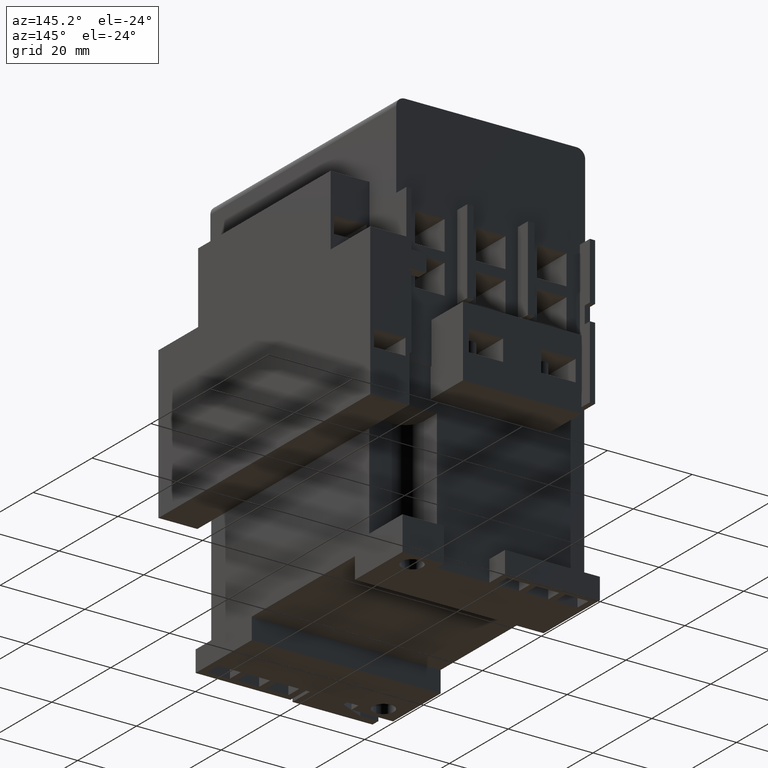
[diagram: clean part render]
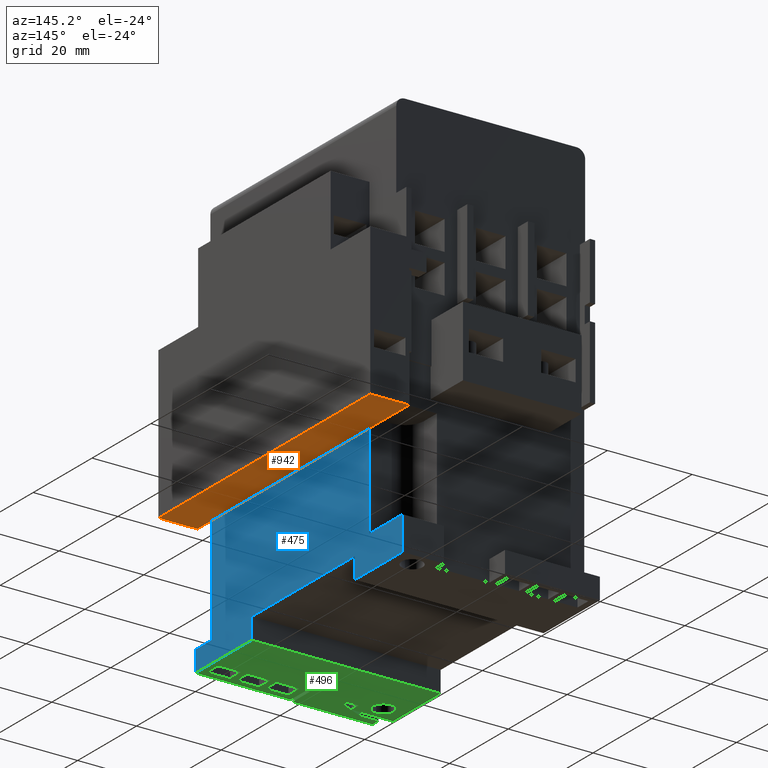
[diagram: same view with three faces highlighted in distinct colors, each labeled with its STEP entity id]
A machine part, auxiliary view with three faces highlighted in distinct colors.
Their STEP definitions:

[orange] entity #942 — the highlighted planar face has unit normal (0, -0, -1).
#942=ADVANCED_FACE('',(#1824),#1399,.T.);
#1399=PLANE('',#9953);
#1824=FACE_OUTER_BOUND('',#2414,.T.);
#2414=EDGE_LOOP('',(#4855,#4856,#4857,#4858,#4859,#4860));
#4855=ORIENTED_EDGE('',*,*,#7063,.F.);
#4856=ORIENTED_EDGE('',*,*,#6950,.F.);
#4857=ORIENTED_EDGE('',*,*,#7068,.T.);
#4858=ORIENTED_EDGE('',*,*,#7076,.T.);
#4859=ORIENTED_EDGE('',*,*,#7079,.F.);
#4860=ORIENTED_EDGE('',*,*,#5852,.F.);
#4991=VERTEX_POINT('',#12416);
#4993=VERTEX_POINT('',#12419);
#5734=VERTEX_POINT('',#14668);
#5736=VERTEX_POINT('',#14673);
#5819=VERTEX_POINT('',#14923);
#5821=VERTEX_POINT('',#14936);
#5852=EDGE_CURVE('',#4991,#4993,#7119,.T.);
#6950=EDGE_CURVE('',#5736,#5734,#8087,.T.);
#7063=EDGE_CURVE('',#5734,#4991,#8174,.T.);
#7068=EDGE_CURVE('',#5736,#5819,#8179,.T.);
#7076=EDGE_CURVE('',#5819,#5821,#8187,.T.);
#7079=EDGE_CURVE('',#4993,#5821,#8190,.T.);
#7119=LINE('',#12418,#8230);
#8087=LINE('',#14674,#9198);
#8174=LINE('',#14914,#9285);
#8179=LINE('',#14924,#9290);
#8187=LINE('',#14938,#9298);
#8190=LINE('',#14942,#9301);
#8230=VECTOR('',#9995,1.);
#9198=VECTOR('',#12051,1.);
#9285=VECTOR('',#12286,1.);
#9290=VECTOR('',#12293,1.);
#9298=VECTOR('',#12307,1.);
#9301=VECTOR('',#12312,1.);
#9953=AXIS2_PLACEMENT_3D('',#14943,#12313,#12314);
#9995=DIRECTION('',(0.,-1.,9.63735264431559E-017));
#12051=DIRECTION('',(-1.,0.,0.));
#12286=DIRECTION('',(0.,-1.,9.63735264431559E-017));
#12293=DIRECTION('',(0.,-1.,9.63735264431559E-017));
#12307=DIRECTION('',(-1.,0.,0.));
#12312=DIRECTION('',(0.,-1.,9.63735264431559E-017));
#12313=DIRECTION('',(0.,-9.63735264431559E-017,-1.));
#12314=DIRECTION('',(0.,1.,-9.71445146547012E-017));
#12416=CARTESIAN_POINT('',(22.3,22.4,25.3499999999993));
#12418=CARTESIAN_POINT('',(22.3,0.,25.35));
#12419=CARTESIAN_POINT('',(22.3,-31.3,25.3499999999993));
#14668=CARTESIAN_POINT('',(22.3,36.000000000001,25.3499999999986));
#14673=CARTESIAN_POINT('',(31.5,36.000000000001,25.3499999999986));
#14674=CARTESIAN_POINT('',(31.5,36.000000000001,25.3499999999986));
#14914=CARTESIAN_POINT('',(22.3,0.,25.35));
#14923=CARTESIAN_POINT('',(31.5,-36.,25.35));
#14924=CARTESIAN_POINT('',(31.5,0.,25.35));
#14936=CARTESIAN_POINT('',(22.3,-36.,25.35));
#14938=CARTESIAN_POINT('',(31.5,-36.,25.35));
#14942=CARTESIAN_POINT('',(22.3,0.,25.35));
#14943=CARTESIAN_POINT('',(31.5,0.,25.35));

[blue] entity #475 — the highlighted planar face has unit normal (1, 0, 0).
#475=ADVANCED_FACE('',(#1425),#968,.T.);
#968=PLANE('',#9330);
#1425=FACE_OUTER_BOUND('',#1845,.T.);
#1845=EDGE_LOOP('',(#2457,#2458,#2459,#2460,#2461,#2462,#2463,#2464,#2465,
#2466,#2467,#2468));
#2457=ORIENTED_EDGE('',*,*,#5851,.F.);
#2458=ORIENTED_EDGE('',*,*,#5852,.T.);
#2459=ORIENTED_EDGE('',*,*,#5853,.F.);
#2460=ORIENTED_EDGE('',*,*,#5854,.F.);
#2461=ORIENTED_EDGE('',*,*,#5855,.F.);
#2462=ORIENTED_EDGE('',*,*,#5856,.F.);
#2463=ORIENTED_EDGE('',*,*,#5857,.F.);
#2464=ORIENTED_EDGE('',*,*,#5858,.T.);
#2465=ORIENTED_EDGE('',*,*,#5859,.T.);
#2466=ORIENTED_EDGE('',*,*,#5860,.T.);
#2467=ORIENTED_EDGE('',*,*,#5861,.F.);
#2468=ORIENTED_EDGE('',*,*,#5862,.T.);
#4991=VERTEX_POINT('',#12416);
#4992=VERTEX_POINT('',#12417);
#4993=VERTEX_POINT('',#12419);
#4994=VERTEX_POINT('',#12421);
#4995=VERTEX_POINT('',#12423);
#4996=VERTEX_POINT('',#12425);
#4997=VERTEX_POINT('',#12427);
#4998=VERTEX_POINT('',#12429);
#4999=VERTEX_POINT('',#12431);
#5000=VERTEX_POINT('',#12433);
#5001=VERTEX_POINT('',#12435);
#5002=VERTEX_POINT('',#12437);
#5851=EDGE_CURVE('',#4991,#4992,#7118,.T.);
#5852=EDGE_CURVE('',#4991,#4993,#7119,.T.);
#5853=EDGE_CURVE('',#4994,#4993,#7120,.T.);
#5854=EDGE_CURVE('',#4995,#4994,#7121,.T.);
#5855=EDGE_CURVE('',#4996,#4995,#7122,.T.);
#5856=EDGE_CURVE('',#4997,#4996,#7123,.T.);
#5857=EDGE_CURVE('',#4998,#4997,#7124,.T.);
#5858=EDGE_CURVE('',#4998,#4999,#7125,.T.);
#5859=EDGE_CURVE('',#4999,#5000,#7126,.T.);
#5860=EDGE_CURVE('',#5000,#5001,#7127,.T.);
#5861=EDGE_CURVE('',#5002,#5001,#7128,.T.);
#5862=EDGE_CURVE('',#5002,#4992,#7129,.T.);
#7118=LINE('',#12415,#8229);
#7119=LINE('',#12418,#8230);
#7120=LINE('',#12420,#8231);
#7121=LINE('',#12422,#8232);
#7122=LINE('',#12424,#8233);
#7123=LINE('',#12426,#8234);
#7124=LINE('',#12428,#8235);
#7125=LINE('',#12430,#8236);
#7126=LINE('',#12432,#8237);
#7127=LINE('',#12434,#8238);
#7128=LINE('',#12436,#8239);
#7129=LINE('',#12438,#8240);
#8229=VECTOR('',#9994,1.);
#8230=VECTOR('',#9995,1.);
#8231=VECTOR('',#9996,1.);
#8232=VECTOR('',#9997,1.);
#8233=VECTOR('',#9998,1.);
#8234=VECTOR('',#9999,1.);
#8235=VECTOR('',#10000,1.);
#8236=VECTOR('',#10001,1.);
#8237=VECTOR('',#10002,1.);
#8238=VECTOR('',#10003,1.);
#8239=VECTOR('',#10004,1.);
#8240=VECTOR('',#10005,1.);
#9330=AXIS2_PLACEMENT_3D('',#12439,#10006,#10007);
#9994=DIRECTION('',(0.,0.,-1.));
#9995=DIRECTION('',(0.,-1.,9.63735264431559E-017));
#9996=DIRECTION('',(0.,3.72058654364999E-016,1.));
#9997=DIRECTION('',(0.,1.,0.));
#9998=DIRECTION('',(0.,0.,1.));
#9999=DIRECTION('',(0.,-1.,1.81646437275058E-016));
#10000=DIRECTION('',(0.,0.,-1.));
#10001=DIRECTION('',(0.,1.,1.22464679914735E-016));
#10002=DIRECTION('',(0.,0.,-1.));
#10003=DIRECTION('',(0.,1.,1.81646437275058E-016));
#10004=DIRECTION('',(0.,0.,-1.));
#10005=DIRECTION('',(0.,-1.,0.));
#10006=DIRECTION('',(1.,0.,0.));
#10007=DIRECTION('',(0.,0.,-1.));
#12415=CARTESIAN_POINT('',(22.3,22.4,27.75));
#12416=CARTESIAN_POINT('',(22.3,22.4,25.3499999999993));
#12417=CARTESIAN_POINT('',(22.3,22.4,2.99999999999999));
#12418=CARTESIAN_POINT('',(22.3,0.,25.35));
#12419=CARTESIAN_POINT('',(22.3,-31.3,25.3499999999993));
#12420=CARTESIAN_POINT('',(22.3,-31.3,7.10995103104489E-015));
#12421=CARTESIAN_POINT('',(22.3,-31.3,7.10995103104489E-015));
#12422=CARTESIAN_POINT('',(22.3,-36.6,7.10995103104489E-015));
#12423=CARTESIAN_POINT('',(22.3,-36.6,6.93889390390723E-015));
#12424=CARTESIAN_POINT('',(22.3,-36.6,-4.99999999999999));
#12425=CARTESIAN_POINT('',(22.3,-36.6,-4.99999999999999));
#12426=CARTESIAN_POINT('',(22.3,-17.5,-5.));
#12427=CARTESIAN_POINT('',(22.3,-17.5,-5.));
#12428=CARTESIAN_POINT('',(22.3,-17.5,2.14313189850787E-015));
#12429=CARTESIAN_POINT('',(22.3,-17.5,2.14313189850787E-015));
#12430=CARTESIAN_POINT('',(22.3,0.,0.));
#12431=CARTESIAN_POINT('',(22.3,17.5,2.14313189850787E-015));
#12432=CARTESIAN_POINT('',(22.3,17.5,2.14313189850787E-015));
#12433=CARTESIAN_POINT('',(22.3,17.5,-5.));
#12434=CARTESIAN_POINT('',(22.3,17.5,-5.));
#12435=CARTESIAN_POINT('',(22.3,33.7,-5.));
#12436=CARTESIAN_POINT('',(22.3,33.7,3.));
#12437=CARTESIAN_POINT('',(22.3,33.7,3.));
#12438=CARTESIAN_POINT('',(22.3,33.7,3.));
#12439=CARTESIAN_POINT('',(22.3,1.83880688453542E-012,92.5));

[green] entity #496 — the highlighted planar face has unit normal (0, -0, -1).
#146=CIRCLE('',#9360,2.45);
#316=FACE_BOUND('',#1885,.T.);
#317=FACE_BOUND('',#1886,.T.);
#318=FACE_BOUND('',#1887,.T.);
#319=FACE_BOUND('',#1888,.T.);
#320=FACE_BOUND('',#1889,.T.);
#496=ADVANCED_FACE('',(#316,#317,#318,#319,#320),#989,.T.);
#989=PLANE('',#9361);
#1885=EDGE_LOOP('',(#2664,#2665,#2666,#2667));
#1886=EDGE_LOOP('',(#2668,#2669,#2670,#2671,#2672,#2673,#2674,#2675,#2676,
#2677,#2678,#2679,#2680,#2681,#2682));
#1887=EDGE_LOOP('',(#2683,#2684,#2685,#2686));
#1888=EDGE_LOOP('',(#2687,#2688,#2689,#2690));
#1889=EDGE_LOOP('',(#2691));
#2664=ORIENTED_EDGE('',*,*,#6037,.T.);
#2665=ORIENTED_EDGE('',*,*,#6038,.T.);
#2666=ORIENTED_EDGE('',*,*,#6039,.T.);
#2667=ORIENTED_EDGE('',*,*,#6040,.T.);
#2668=ORIENTED_EDGE('',*,*,#6041,.F.);
#2669=ORIENTED_EDGE('',*,*,#6042,.T.);
#2670=ORIENTED_EDGE('',*,*,#6043,.T.);
#2671=ORIENTED_EDGE('',*,*,#5873,.F.);
#2672=ORIENTED_EDGE('',*,*,#6044,.T.);
#2673=ORIENTED_EDGE('',*,*,#5856,.T.);
#2674=ORIENTED_EDGE('',*,*,#6045,.F.);
#2675=ORIENTED_EDGE('',*,*,#6046,.F.);
#2676=ORIENTED_EDGE('',*,*,#6047,.F.);
#2677=ORIENTED_EDGE('',*,*,#6048,.T.);
#2678=ORIENTED_EDGE('',*,*,#6049,.T.);
#2679=ORIENTED_EDGE('',*,*,#6050,.T.);
#2680=ORIENTED_EDGE('',*,*,#6051,.T.);
#2681=ORIENTED_EDGE('',*,*,#6052,.T.);
#2682=ORIENTED_EDGE('',*,*,#6053,.T.);
#2683=ORIENTED_EDGE('',*,*,#6054,.F.);
#2684=ORIENTED_EDGE('',*,*,#6055,.F.);
#2685=ORIENTED_EDGE('',*,*,#6056,.F.);
#2686=ORIENTED_EDGE('',*,*,#6057,.F.);
#2687=ORIENTED_EDGE('',*,*,#6058,.F.);
#2688=ORIENTED_EDGE('',*,*,#6059,.F.);
#2689=ORIENTED_EDGE('',*,*,#6060,.F.);
#2690=ORIENTED_EDGE('',*,*,#6061,.F.);
#2691=ORIENTED_EDGE('',*,*,#6062,.T.);
#4996=VERTEX_POINT('',#12425);
#4997=VERTEX_POINT('',#12427);
#5013=VERTEX_POINT('',#12460);
#5014=VERTEX_POINT('',#12462);
#5156=VERTEX_POINT('',#12788);
#5157=VERTEX_POINT('',#12789);
#5158=VERTEX_POINT('',#12791);
#5159=VERTEX_POINT('',#12793);
#5160=VERTEX_POINT('',#12796);
#5161=VERTEX_POINT('',#12797);
#5162=VERTEX_POINT('',#12799);
#5163=VERTEX_POINT('',#12803);
#5164=VERTEX_POINT('',#12805);
#5165=VERTEX_POINT('',#12807);
#5166=VERTEX_POINT('',#12809);
#5167=VERTEX_POINT('',#12811);
#5168=VERTEX_POINT('',#12813);
#5169=VERTEX_POINT('',#12815);
#5170=VERTEX_POINT('',#12817);
#5171=VERTEX_POINT('',#12820);
#5172=VERTEX_POINT('',#12821);
#5173=VERTEX_POINT('',#12823);
#5174=VERTEX_POINT('',#12825);
#5175=VERTEX_POINT('',#12828);
#5176=VERTEX_POINT('',#12829);
#5177=VERTEX_POINT('',#12831);
#5178=VERTEX_POINT('',#12833);
#5179=VERTEX_POINT('',#12836);
#5856=EDGE_CURVE('',#4997,#4996,#7123,.T.);
#5873=EDGE_CURVE('',#5013,#5014,#7140,.T.);
#6037=EDGE_CURVE('',#5156,#5157,#7295,.T.);
#6038=EDGE_CURVE('',#5157,#5158,#7296,.T.);
#6039=EDGE_CURVE('',#5158,#5159,#7297,.T.);
#6040=EDGE_CURVE('',#5159,#5156,#7298,.T.);
#6041=EDGE_CURVE('',#5160,#5161,#7299,.T.);
#6042=EDGE_CURVE('',#5160,#5162,#7300,.T.);
#6043=EDGE_CURVE('',#5162,#5014,#7301,.T.);
#6044=EDGE_CURVE('',#5013,#4997,#7302,.T.);
#6045=EDGE_CURVE('',#5163,#4996,#7303,.T.);
#6046=EDGE_CURVE('',#5164,#5163,#7304,.T.);
#6047=EDGE_CURVE('',#5165,#5164,#7305,.T.);
#6048=EDGE_CURVE('',#5165,#5166,#7306,.T.);
#6049=EDGE_CURVE('',#5166,#5167,#7307,.T.);
#6050=EDGE_CURVE('',#5167,#5168,#7308,.T.);
#6051=EDGE_CURVE('',#5168,#5169,#7309,.T.);
#6052=EDGE_CURVE('',#5169,#5170,#7310,.T.);
#6053=EDGE_CURVE('',#5170,#5161,#7311,.T.);
#6054=EDGE_CURVE('',#5171,#5172,#7312,.T.);
#6055=EDGE_CURVE('',#5173,#5171,#7313,.T.);
#6056=EDGE_CURVE('',#5174,#5173,#7314,.T.);
#6057=EDGE_CURVE('',#5172,#5174,#7315,.T.);
#6058=EDGE_CURVE('',#5175,#5176,#7316,.T.);
#6059=EDGE_CURVE('',#5177,#5175,#7317,.T.);
#6060=EDGE_CURVE('',#5178,#5177,#7318,.T.);
#6061=EDGE_CURVE('',#5176,#5178,#7319,.T.);
#6062=EDGE_CURVE('',#5179,#5179,#146,.T.);
#7123=LINE('',#12426,#8234);
#7140=LINE('',#12461,#8251);
#7295=LINE('',#12787,#8406);
#7296=LINE('',#12790,#8407);
#7297=LINE('',#12792,#8408);
#7298=LINE('',#12794,#8409);
#7299=LINE('',#12795,#8410);
#7300=LINE('',#12798,#8411);
#7301=LINE('',#12800,#8412);
#7302=LINE('',#12801,#8413);
#7303=LINE('',#12802,#8414);
#7304=LINE('',#12804,#8415);
#7305=LINE('',#12806,#8416);
#7306=LINE('',#12808,#8417);
#7307=LINE('',#12810,#8418);
#7308=LINE('',#12812,#8419);
#7309=LINE('',#12814,#8420);
#7310=LINE('',#12816,#8421);
#7311=LINE('',#12818,#8422);
#7312=LINE('',#12819,#8423);
#7313=LINE('',#12822,#8424);
#7314=LINE('',#12824,#8425);
#7315=LINE('',#12826,#8426);
#7316=LINE('',#12827,#8427);
#7317=LINE('',#12830,#8428);
#7318=LINE('',#12832,#8429);
#7319=LINE('',#12834,#8430);
#8234=VECTOR('',#9999,1.);
#8251=VECTOR('',#10018,1.);
#8406=VECTOR('',#10231,1.);
#8407=VECTOR('',#10232,1.);
#8408=VECTOR('',#10233,1.);
#8409=VECTOR('',#10234,1.);
#8410=VECTOR('',#10235,1.);
#8411=VECTOR('',#10236,1.);
#8412=VECTOR('',#10237,1.);
#8413=VECTOR('',#10238,1.);
#8414=VECTOR('',#10239,1.);
#8415=VECTOR('',#10240,1.);
#8416=VECTOR('',#10241,1.);
#8417=VECTOR('',#10242,1.);
#8418=VECTOR('',#10243,1.);
#8419=VECTOR('',#10244,1.);
#8420=VECTOR('',#10245,1.);
#8421=VECTOR('',#10246,1.);
#8422=VECTOR('',#10247,1.);
#8423=VECTOR('',#10248,1.);
#8424=VECTOR('',#10249,1.);
#8425=VECTOR('',#10250,1.);
#8426=VECTOR('',#10251,1.);
#8427=VECTOR('',#10252,1.);
#8428=VECTOR('',#10253,1.);
#8429=VECTOR('',#10254,1.);
#8430=VECTOR('',#10255,1.);
#9360=AXIS2_PLACEMENT_3D('',#12835,#10256,#10257);
#9361=AXIS2_PLACEMENT_3D('',#12837,#10258,#10259);
#9999=DIRECTION('',(0.,-1.,1.81646437275058E-016));
#10018=DIRECTION('',(0.,-1.,1.81646437275058E-016));
#10231=DIRECTION('',(-1.,0.,0.));
#10232=DIRECTION('',(2.12790326065711E-031,-1.,1.81646437275058E-016));
#10233=DIRECTION('',(1.,0.,0.));
#10234=DIRECTION('',(-2.12790326065711E-031,1.,-1.81646437275058E-016));
#10235=DIRECTION('',(1.,0.,0.));
#10236=DIRECTION('',(0.,-1.,-3.61400724161837E-016));
#10237=DIRECTION('',(-1.,0.,0.));
#10238=DIRECTION('',(1.,0.,0.));
#10239=DIRECTION('',(1.,0.,0.));
#10240=DIRECTION('',(2.12790326065711E-031,-1.,1.81646437275058E-016));
#10241=DIRECTION('',(1.,0.,0.));
#10242=DIRECTION('',(0.,-1.,1.81646437275058E-016));
#10243=DIRECTION('',(-1.,0.,0.));
#10244=DIRECTION('',(0.,1.,-1.81646437275058E-016));
#10245=DIRECTION('',(1.,0.,0.));
#10246=DIRECTION('',(0.909559167333842,0.415574447143911,-7.54876177462435E-017));
#10247=DIRECTION('',(0.,1.,-1.81646437275058E-016));
#10248=DIRECTION('',(1.,0.,0.));
#10249=DIRECTION('',(-2.12790326065711E-031,1.,-1.81646437275058E-016));
#10250=DIRECTION('',(-1.,0.,0.));
#10251=DIRECTION('',(2.12790326065711E-031,-1.,1.81646437275058E-016));
#10252=DIRECTION('',(1.,0.,0.));
#10253=DIRECTION('',(2.3442209134826E-016,1.,-1.81646437275058E-016));
#10254=DIRECTION('',(-1.,0.,0.));
#10255=DIRECTION('',(2.12790326065711E-031,-1.,1.81646437275058E-016));
#10256=DIRECTION('',(0.,1.81646437275058E-016,1.));
#10257=DIRECTION('',(0.,1.,-3.54025199178941E-016));
#10258=DIRECTION('',(0.,-1.81646437275058E-016,-1.));
#10259=DIRECTION('',(0.,-1.,1.81278603239576E-016));
#12425=CARTESIAN_POINT('',(22.3,-36.6,-4.99999999999999));
#12426=CARTESIAN_POINT('',(22.3,-17.5,-5.));
#12427=CARTESIAN_POINT('',(22.3,-17.5,-5.));
#12460=CARTESIAN_POINT('',(-22.3,-17.5,-5.));
#12461=CARTESIAN_POINT('',(-22.3,-17.5,-5.));
#12462=CARTESIAN_POINT('',(-22.3,-33.6999999999992,-5.00000000000001));
#12787=CARTESIAN_POINT('',(20.7,-31.3,-5.));
#12788=CARTESIAN_POINT('',(20.7,-31.2999999999993,-5.));
#12789=CARTESIAN_POINT('',(15.3,-31.2999999999993,-5.));
#12790=CARTESIAN_POINT('',(15.3,-31.2999999999993,-5.));
#12791=CARTESIAN_POINT('',(15.3,-34.9999999999986,-4.99999999999999));
#12792=CARTESIAN_POINT('',(15.3,-34.9999999999986,-4.99999999999999));
#12793=CARTESIAN_POINT('',(20.7,-34.9999999999986,-5.));
#12794=CARTESIAN_POINT('',(20.7,-34.9999999999986,-4.99999999999999));
#12795=CARTESIAN_POINT('',(-22.3,-31.3,-5.));
#12796=CARTESIAN_POINT('',(-12.5,-31.2999999999993,-5.00000000000001));
#12797=CARTESIAN_POINT('',(-9.79999999999999,-31.3,-5.));
#12798=CARTESIAN_POINT('',(-12.5,-31.2999999999993,-5.00000000000001));
#12799=CARTESIAN_POINT('',(-12.5,-33.6999999999992,-5.00000000000001));
#12800=CARTESIAN_POINT('',(-12.5,-33.6999999999992,-5.00000000000001));
#12801=CARTESIAN_POINT('',(-22.3,-17.5,-5.));
#12802=CARTESIAN_POINT('',(-22.3,-36.6,-4.99999999999999));
#12803=CARTESIAN_POINT('',(-0.100000000000005,-36.6,-4.99999999999999));
#12804=CARTESIAN_POINT('',(-0.100000000000005,-31.2999999999993,-5.));
#12805=CARTESIAN_POINT('',(-0.100000000000009,-31.3,-5.));
#12806=CARTESIAN_POINT('',(-22.3,-31.3,-5.));
#12807=CARTESIAN_POINT('',(-1.,-31.3,-5.));
#12808=CARTESIAN_POINT('',(-1.,-31.3,-5.));
#12809=CARTESIAN_POINT('',(-1.,-37.2,-4.99999999999999));
#12810=CARTESIAN_POINT('',(-1.,-37.2,-4.99999999999999));
#12811=CARTESIAN_POINT('',(-19.9,-37.2,-4.99999999999999));
#12812=CARTESIAN_POINT('',(-19.9,-37.2,-4.99999999999999));
#12813=CARTESIAN_POINT('',(-19.9,-35.2,-4.99999999999999));
#12814=CARTESIAN_POINT('',(-19.9,-35.2,-4.99999999999999));
#12815=CARTESIAN_POINT('',(-15.6,-35.2,-5.));
#12816=CARTESIAN_POINT('',(-15.6,-35.2,-4.99999999999999));
#12817=CARTESIAN_POINT('',(-9.79999999999999,-32.55,-5.));
#12818=CARTESIAN_POINT('',(-9.79999999999999,-32.55,-5.));
#12819=CARTESIAN_POINT('',(8.39999999999999,-31.3,-5.));
#12820=CARTESIAN_POINT('',(8.4,-31.2999999999993,-5.));
#12821=CARTESIAN_POINT('',(13.8,-31.2999999999993,-5.));
#12822=CARTESIAN_POINT('',(8.4,-34.9999999999986,-4.99999999999999));
#12823=CARTESIAN_POINT('',(8.4,-34.9999999999986,-5.));
#12824=CARTESIAN_POINT('',(13.8,-34.9999999999986,-4.99999999999999));
#12825=CARTESIAN_POINT('',(13.8,-34.9999999999986,-4.99999999999999));
#12826=CARTESIAN_POINT('',(13.8,-31.2999999999993,-5.));
#12827=CARTESIAN_POINT('',(1.5,-31.3,-5.));
#12828=CARTESIAN_POINT('',(1.5,-31.2999999999993,-5.));
#12829=CARTESIAN_POINT('',(6.9,-31.2999999999993,-5.));
#12830=CARTESIAN_POINT('',(1.49999999999999,-34.9999999999986,-4.99999999999999));
#12831=CARTESIAN_POINT('',(1.49999999999999,-34.9999999999986,-5.));
#12832=CARTESIAN_POINT('',(6.9,-34.9999999999986,-4.99999999999999));
#12833=CARTESIAN_POINT('',(6.9,-34.9999999999986,-4.99999999999999));
#12834=CARTESIAN_POINT('',(6.9,-31.2999999999993,-5.));
#12835=CARTESIAN_POINT('',(-17.4,-29.8999999999992,-5.));
#12836=CARTESIAN_POINT('',(-17.4,-27.4499999999992,-5.));
#12837=CARTESIAN_POINT('',(-22.3,-17.5,-5.));